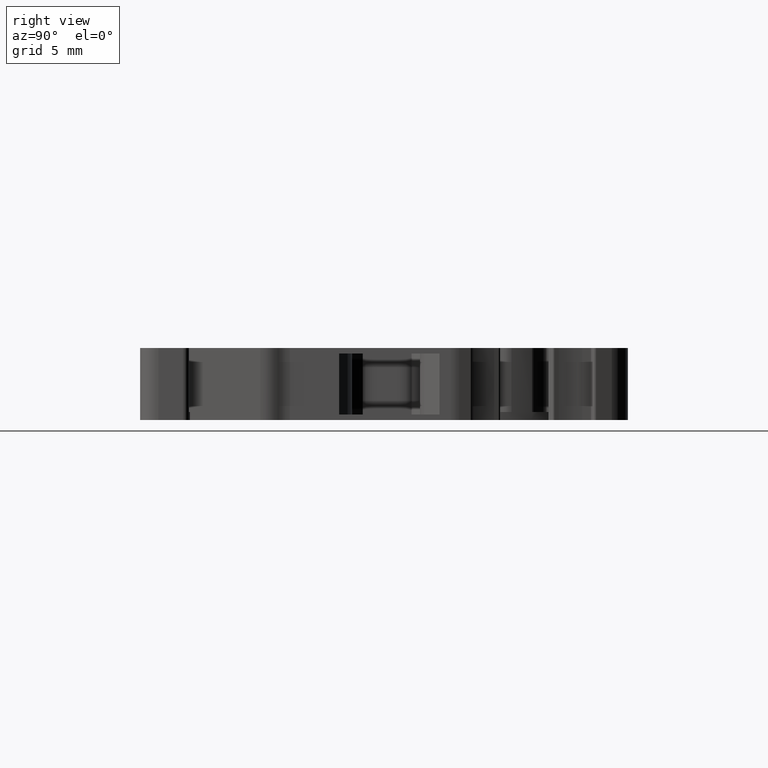
[diagram: clean part render]
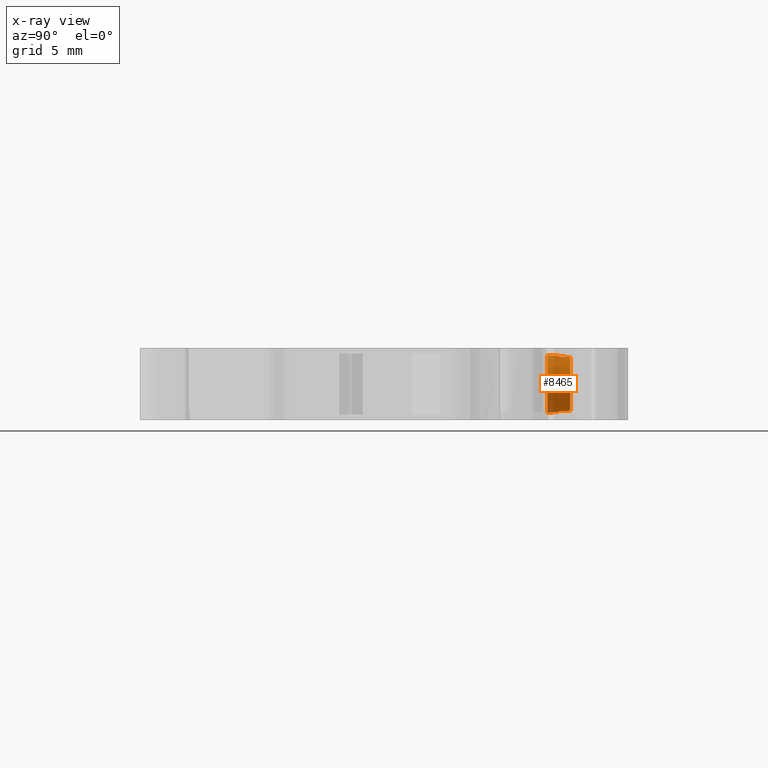
[diagram: x-ray — body ghosted, one internal face saturated and labeled with its STEP entity id]
A machine part, right view, then the same camera in x-ray: the body is ghosted and one INTERNAL B-rep face — a face not visible from any outside direction — is saturated and labeled: STEP entity #8465.
In plain terms, the highlighted conical surface has half-angle 2 deg.
Its self-contained STEP definition (entity closure, byte-faithful):
#702 = VERTEX_POINT ( 'NONE', #10820 ) ;
#703 = VERTEX_POINT ( 'NONE', #10879 ) ;
#722 = VERTEX_POINT ( 'NONE', #10944 ) ;
#726 = VERTEX_POINT ( 'NONE', #10931 ) ;
#731 = VERTEX_POINT ( 'NONE', #10918 ) ;
#746 = VERTEX_POINT ( 'NONE', #10891 ) ;
#765 = VERTEX_POINT ( 'NONE', #10915 ) ;
#774 = VERTEX_POINT ( 'NONE', #10941 ) ;
#964 = ORIENTED_EDGE ( 'NONE', *, *, #5896, .T. ) ;
#973 = ORIENTED_EDGE ( 'NONE', *, *, #5885, .F. ) ;
#978 = ORIENTED_EDGE ( 'NONE', *, *, #5863, .T. ) ;
#989 = ORIENTED_EDGE ( 'NONE', *, *, #5870, .T. ) ;
#992 = ORIENTED_EDGE ( 'NONE', *, *, #5859, .T. ) ;
#1000 = ORIENTED_EDGE ( 'NONE', *, *, #5852, .T. ) ;
#1013 = ORIENTED_EDGE ( 'NONE', *, *, #5898, .F. ) ;
#1021 = ORIENTED_EDGE ( 'NONE', *, *, #5900, .T. ) ;
#2268 = CARTESIAN_POINT ( 'NONE',  ( 1451.103378640880000, 952.7469568751770300, 0.0000000000000000000 ) ) ;
#2275 = DIRECTION ( 'NONE',  ( 0.0000000000000000000, -1.000000000000000000, 0.0000000000000000000 ) ) ;
#2297 = DIRECTION ( 'NONE',  ( 0.0000000000000000000, 0.0000000000000000000, -1.000000000000000000 ) ) ;
#2303 = FACE_OUTER_BOUND ( 'NONE', #9088, .T. ) ;
#2361 = B_SPLINE_CURVE_WITH_KNOTS ( 'NONE', 3,
 ( #7103, #7096, #7097, #7089 ),
 .UNSPECIFIED., .F., .F.,
 ( 4, 4 ),
 ( 0.004002626720418711200, 0.004915897338210656300 ),
 .UNSPECIFIED. ) ;
#2418 = B_SPLINE_CURVE_WITH_KNOTS ( 'NONE', 3,
 ( #12759, #12792, #12803, #12787 ),
 .UNSPECIFIED., .F., .F.,
 ( 4, 4 ),
 ( 0.003968948222447500400, 0.004882218841299438800 ),
 .UNSPECIFIED. ) ;
#4333 = CARTESIAN_POINT ( 'NONE',  ( 1451.103378640880000, 951.8342832071790600, 0.0000000000000000000 ) ) ;
#4354 = DIRECTION ( 'NONE',  ( 0.0000000000000000000, 0.0000000000000000000, -1.000000000000000000 ) ) ;
#4358 = DIRECTION ( 'NONE',  ( 0.0000000000000000000, -1.000000000000000000, 0.0000000000000000000 ) ) ;
#4368 = CARTESIAN_POINT ( 'NONE',  ( 1451.103378640880000, 952.7469568751770300, 2.283382567574320000 ) ) ;
#4372 = CARTESIAN_POINT ( 'NONE',  ( 1451.103378640880000, 950.8846764156270400, 0.0000000000000000000 ) ) ;
#4387 = DIRECTION ( 'NONE',  ( 0.0000000000000000000, 1.000000000000000000, 0.0000000000000000000 ) ) ;
#4388 = DIRECTION ( 'NONE',  ( 0.0000000000000000000, 0.0000000000000000000, 1.000000000000000000 ) ) ;
#4389 = LINE ( 'NONE', #4368, #14592 ) ;
#4407 = DIRECTION ( 'NONE',  ( 4.273955692879075100E-018, -0.9993908270190894300, 0.03489949670268006200 ) ) ;
#5852 = EDGE_CURVE ( 'NONE', #726, #746, #14582, .T. ) ;
#5859 = EDGE_CURVE ( 'NONE', #774, #703, #14585, .T. ) ;
#5863 = EDGE_CURVE ( 'NONE', #702, #774, #4389, .T. ) ;
#5870 = EDGE_CURVE ( 'NONE', #765, #731, #2361, .T. ) ;
#5885 = EDGE_CURVE ( 'NONE', #726, #703, #7117, .T. ) ;
#5896 = EDGE_CURVE ( 'NONE', #722, #765, #14645, .T. ) ;
#5898 = EDGE_CURVE ( 'NONE', #702, #731, #14624, .T. ) ;
#5900 = EDGE_CURVE ( 'NONE', #746, #722, #2418, .T. ) ;
#7089 = CARTESIAN_POINT ( 'NONE',  ( 1451.703378640879900, 951.8342832071790600, 2.236157489422304900 ) ) ;
#7096 = CARTESIAN_POINT ( 'NONE',  ( 1451.703378640879900, 952.4427325223110800, 2.214152964252230000 ) ) ;
#7097 = CARTESIAN_POINT ( 'NONE',  ( 1451.703378640879900, 952.1385079628186100, 2.225157947963095900 ) ) ;
#7103 = CARTESIAN_POINT ( 'NONE',  ( 1451.703378640879900, 952.7469568751770300, 2.203142289981160100 ) ) ;
#7117 = LINE ( 'NONE', #7124, #14621 ) ;
#7122 = DIRECTION ( 'NONE',  ( 0.0000000000000000000, -0.9993908270190894300, -0.03489949670268006200 ) ) ;
#7124 = CARTESIAN_POINT ( 'NONE',  ( 1451.103378640880000, 952.7469568751770300, -2.283382567574320000 ) ) ;
#7411 = DIRECTION ( 'NONE',  ( -0.0000000000000000000, 1.000000000000000000, -0.0000000000000000000 ) ) ;
#7412 = CARTESIAN_POINT ( 'NONE',  ( 1451.103378640880000, 951.8342832071790600, 0.0000000000000000000 ) ) ;
#8138 = DIRECTION ( 'NONE',  ( 0.0000000000000000000, 0.0000000000000000000, -1.000000000000000000 ) ) ;
#8465 = ADVANCED_FACE ( 'NONE', ( #2303 ), #10496, .T. ) ;
#9088 = EDGE_LOOP ( 'NONE', ( #1013, #978, #992, #973, #1000, #1021, #964, #989 ) ) ;
#10496 = CONICAL_SURFACE ( 'NONE', #10497, 2.283382567574320000, 0.03490658504006580200 ) ;
#10497 = AXIS2_PLACEMENT_3D ( 'NONE', #2268, #2275, #2297 ) ;
#10820 = CARTESIAN_POINT ( 'NONE',  ( 1451.103378640880000, 951.8342832071790600, 2.315253834355832700 ) ) ;
#10879 = CARTESIAN_POINT ( 'NONE',  ( 1451.103378640880000, 950.8846764156270400, -2.348414834231587800 ) ) ;
#10891 = CARTESIAN_POINT ( 'NONE',  ( 1451.703378640879900, 951.8342832071790600, -2.236157489422304900 ) ) ;
#10915 = CARTESIAN_POINT ( 'NONE',  ( 1451.703378640879900, 952.7469568751770300, 2.203142289981160100 ) ) ;
#10918 = CARTESIAN_POINT ( 'NONE',  ( 1451.703378640879900, 951.8342832071790600, 2.236157489422304900 ) ) ;
#10931 = CARTESIAN_POINT ( 'NONE',  ( 1451.103378640880000, 951.8342832071790600, -2.315253834355832700 ) ) ;
#10941 = CARTESIAN_POINT ( 'NONE',  ( 1451.103378640880000, 950.8846764156270400, 2.348414834231587800 ) ) ;
#10944 = CARTESIAN_POINT ( 'NONE',  ( 1451.703378640879900, 952.7469568751770300, -2.203142289981039800 ) ) ;
#11119 = CARTESIAN_POINT ( 'NONE',  ( 1451.103378640880000, 952.7469568751770300, 0.0000000000000000000 ) ) ;
#12759 = CARTESIAN_POINT ( 'NONE',  ( 1451.703378640879900, 951.8342832071790600, -2.236157489422304900 ) ) ;
#12787 = CARTESIAN_POINT ( 'NONE',  ( 1451.703378640879900, 952.7469568751770300, -2.203142289981039800 ) ) ;
#12792 = CARTESIAN_POINT ( 'NONE',  ( 1451.703378640879900, 952.1385079628186100, -2.225157947963095400 ) ) ;
#12803 = CARTESIAN_POINT ( 'NONE',  ( 1451.703378640879900, 952.4427325223110800, -2.214152964252230400 ) ) ;
#13054 = DIRECTION ( 'NONE',  ( 0.0000000000000000000, 0.0000000000000000000, -1.000000000000000000 ) ) ;
#13072 = DIRECTION ( 'NONE',  ( 0.0000000000000000000, -1.000000000000000000, 0.0000000000000000000 ) ) ;
#14582 = CIRCLE ( 'NONE', #14588, 2.315253834355839800 ) ;
#14585 = CIRCLE ( 'NONE', #14594, 2.348414834231587400 ) ;
#14588 = AXIS2_PLACEMENT_3D ( 'NONE', #4333, #4358, #4354 ) ;
#14592 = VECTOR ( 'NONE', #4407, 1000.000000000000200 ) ;
#14594 = AXIS2_PLACEMENT_3D ( 'NONE', #4372, #4387, #4388 ) ;
#14621 = VECTOR ( 'NONE', #7122, 1000.000000000000200 ) ;
#14624 = CIRCLE ( 'NONE', #14648, 2.315253834355832200 ) ;
#14625 = AXIS2_PLACEMENT_3D ( 'NONE', #11119, #13072, #13054 ) ;
#14645 = CIRCLE ( 'NONE', #14625, 2.283382567574320000 ) ;
#14648 = AXIS2_PLACEMENT_3D ( 'NONE', #7412, #7411, #8138 ) ;